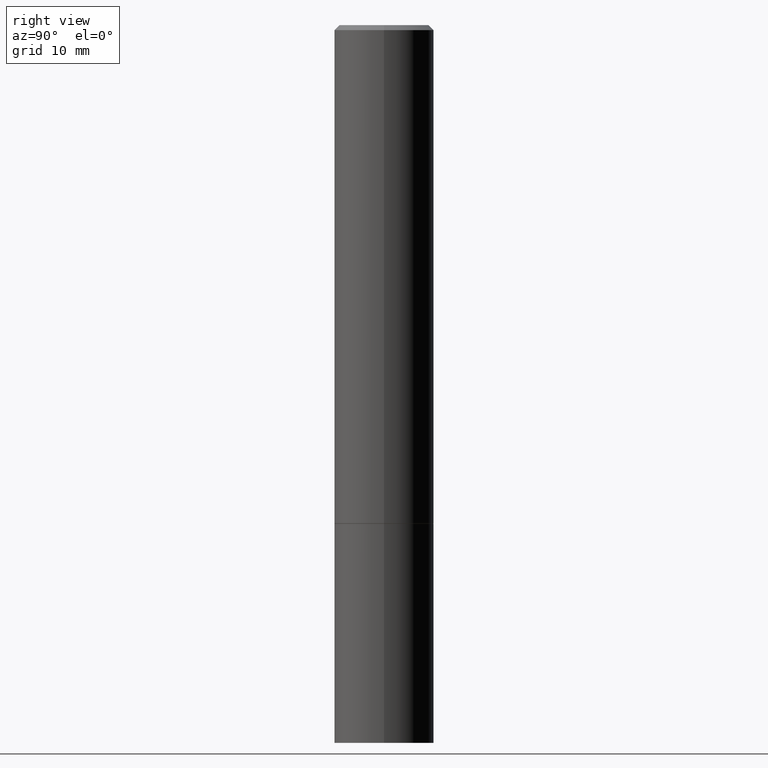
[diagram: clean part render]
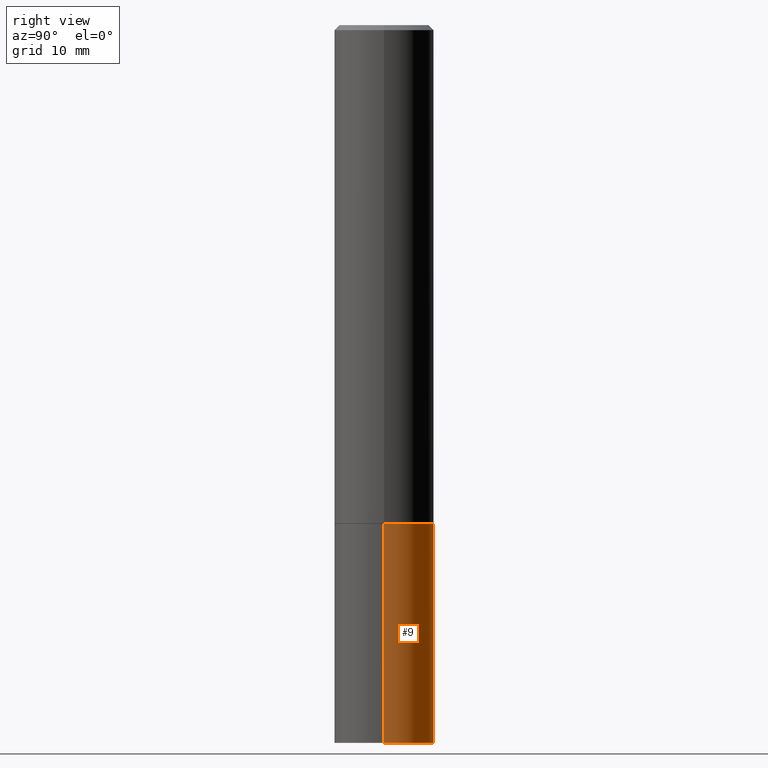
[diagram: same view with one face highlighted and labeled with its STEP entity id]
A machine part, right view. The second image highlights one B-rep face of the part: STEP entity #9.
In plain terms, the highlighted cylindrical surface (partial cylindrical patch) has radius 5 mm, axis along (-0, 0, 1).
Its self-contained STEP definition (entity closure, byte-faithful):
#2 = ORIENTED_EDGE ( 'NONE', *, *, #43, .T. ) ;
#3 = LINE ( 'NONE', #337, #159 ) ;
#5 = AXIS2_PLACEMENT_3D ( 'NONE', #317, #77, #11 ) ;
#9 = ADVANCED_FACE ( 'NONE', ( #179 ), #154, .T. ) ;
#11 = DIRECTION ( 'NONE',  ( 1.000000000000000000, -6.982962677686267499E-15, 0.000000000000000000 ) ) ;
#15 = CARTESIAN_POINT ( 'NONE',  ( -0.1968500000000000250, -6.986263633954999297E-15, -1.968500000000000139 ) ) ;
#19 = CARTESIAN_POINT ( 'NONE',  ( 0.1968500000000000250, -8.247577218615273316E-15, -1.968500000000000139 ) ) ;
#24 = ORIENTED_EDGE ( 'NONE', *, *, #320, .F. ) ;
#43 = EDGE_CURVE ( 'NONE', #140, #282, #105, .T. ) ;
#65 = VERTEX_POINT ( 'NONE', #19 ) ;
#76 = DIRECTION ( 'NONE',  ( 1.000000000000000000, -6.982962677686265922E-15, 4.876176775795935793E-29 ) ) ;
#77 = DIRECTION ( 'NONE',  ( -2.445468806185136597E-29, 3.491481338843145583E-15, 1.000000000000000000 ) ) ;
#86 = EDGE_LOOP ( 'NONE', ( #265, #2, #24, #167 ) ) ;
#94 = CARTESIAN_POINT ( 'NONE',  ( -0.1968500000000000250, -6.986263633954999297E-15, -2.834600000000000009 ) ) ;
#105 = LINE ( 'NONE', #328, #348 ) ;
#113 = CIRCLE ( 'NONE', #5, 0.1968500000000000250 ) ;
#136 = DIRECTION ( 'NONE',  ( -2.445468806185136877E-29, 3.491481338843145188E-15, 1.000000000000000000 ) ) ;
#140 = VERTEX_POINT ( 'NONE', #94 ) ;
#149 = EDGE_CURVE ( 'NONE', #237, #140, #113, .T. ) ;
#154 = CYLINDRICAL_SURFACE ( 'NONE', #232, 0.1968500000000000250 ) ;
#159 = VECTOR ( 'NONE', #136, 39.37007874015748143 ) ;
#165 = DIRECTION ( 'NONE',  ( -2.445468806185136877E-29, 3.491481338843145188E-15, 1.000000000000000000 ) ) ;
#167 = ORIENTED_EDGE ( 'NONE', *, *, #294, .F. ) ;
#179 = FACE_OUTER_BOUND ( 'NONE', #86, .T. ) ;
#232 = AXIS2_PLACEMENT_3D ( 'NONE', #263, #324, #76 ) ;
#237 = VERTEX_POINT ( 'NONE', #289 ) ;
#254 = DIRECTION ( 'NONE',  ( -2.445468806185136597E-29, 3.491481338843145583E-15, 1.000000000000000000 ) ) ;
#263 = CARTESIAN_POINT ( 'NONE',  ( 0.000000000000000000, 0.000000000000000000, 0.000000000000000000 ) ) ;
#265 = ORIENTED_EDGE ( 'NONE', *, *, #149, .T. ) ;
#282 = VERTEX_POINT ( 'NONE', #15 ) ;
#283 = CARTESIAN_POINT ( 'NONE',  ( 4.813905344975441835E-29, -6.872981015512731707E-15, -1.968500000000000139 ) ) ;
#289 = CARTESIAN_POINT ( 'NONE',  ( 0.1968500000000000250, -1.127154920618732249E-14, -2.834600000000000009 ) ) ;
#294 = EDGE_CURVE ( 'NONE', #237, #65, #3, .T. ) ;
#302 = CIRCLE ( 'NONE', #353, 0.1968500000000000250 ) ;
#317 = CARTESIAN_POINT ( 'NONE',  ( 6.931925878012387517E-29, -9.896953003084780885E-15, -2.834600000000000009 ) ) ;
#320 = EDGE_CURVE ( 'NONE', #65, #282, #302, .T. ) ;
#324 = DIRECTION ( 'NONE',  ( -2.445468806185136597E-29, 3.491481338843145583E-15, 1.000000000000000000 ) ) ;
#328 = CARTESIAN_POINT ( 'NONE',  ( -0.1968500000000000250, 1.398703375343757393E-15, -9.682923725166783677E-30 ) ) ;
#330 = DIRECTION ( 'NONE',  ( 1.000000000000000000, -6.982962677686267499E-15, 0.000000000000000000 ) ) ;
#337 = CARTESIAN_POINT ( 'NONE',  ( 0.1968500000000000250, -1.374596203102541608E-15, 9.598753983154300858E-30 ) ) ;
#348 = VECTOR ( 'NONE', #165, 39.37007874015748143 ) ;
#353 = AXIS2_PLACEMENT_3D ( 'NONE', #283, #254, #330 ) ;